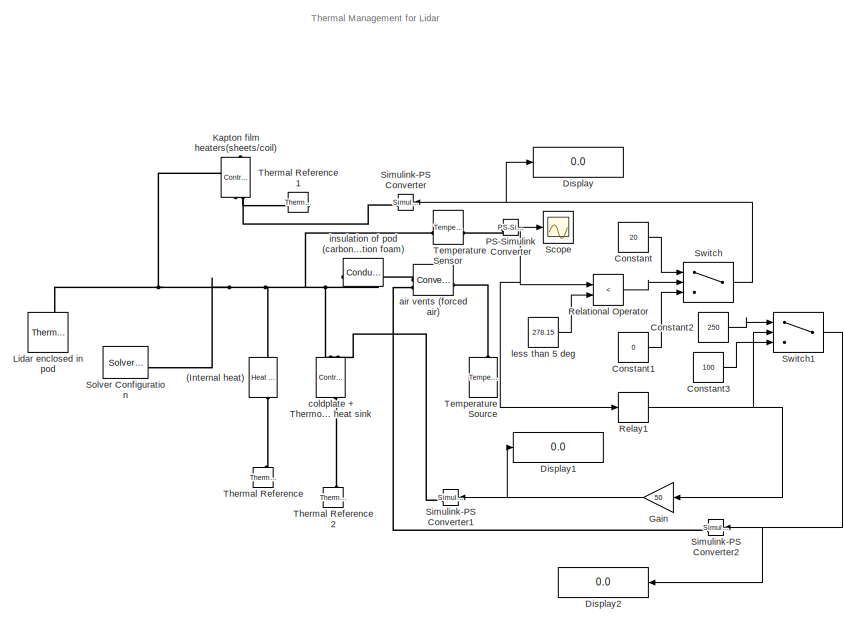
[diagram: root canvas - part 1/2, middle right region]
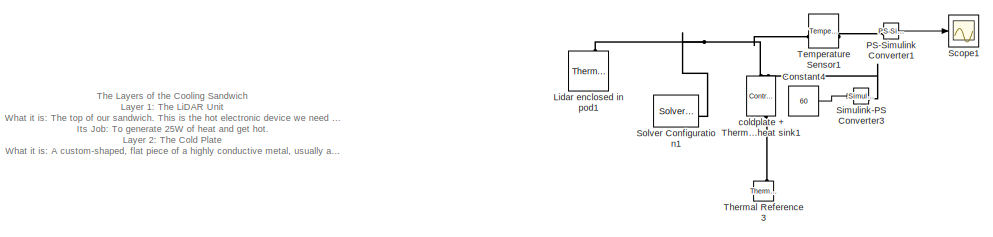
[diagram: root canvas - part 2/2, bottom left region]
MODEL slx_9865f0318a9e
KIND model
CONFIG AbsTol = auto
CONFIG EnableMultiTasking = off
CONFIG FixedStep = auto
CONFIG MaxStep = auto
CONFIG MinStep = auto
CONFIG RelTol = 1e-3
CONFIG SampleTimeConstraint = Unconstrained
CONFIG SolverName = ode45
CONFIG StartTime = 0.0
CONFIG StopTime = 3600
BLOCK [Reference] (Internal heat)  REF=fl_lib/Thermal/Thermal Sources/Heat Flow Rate
Source
  SourceBlock = fl_lib/Thermal/Thermal Sources/Heat Flow Rate\nSource
  SourceType = Heat Flow Rate\nSource
BLOCK [Constant] Constant
  Value = 20
BLOCK [Constant] Constant1
  Value = 0
BLOCK [Constant] Constant2
  Value = 250
BLOCK [Constant] Constant3
  Value = 100
BLOCK [Constant] Constant4
  Commented = on
  Value = 60
BLOCK [Display] Display
  Decimation = 1
BLOCK [Display] Display1
  Decimation = 1
BLOCK [Display] Display2
  Decimation = 1
  NameLocation = top
BLOCK [Gain] Gain
  Gain = 50
BLOCK [Reference] Kapton film heaters(sheets//coil)  REF=fl_lib/Thermal/Thermal Sources/Controlled Heat Flow
Rate Source
  NameLocation = right
  SourceBlock = fl_lib/Thermal/Thermal Sources/Controlled Heat Flow\nRate Source
  SourceType = Controlled Heat Flow\nRate Source
BLOCK [Reference] Lidar enclosed in pod  REF=fl_lib/Thermal/Thermal Elements/Thermal Mass
  SourceBlock = fl_lib/Thermal/Thermal Elements/Thermal Mass
  SourceType = Thermal Mass
BLOCK [Reference] Lidar enclosed in pod1  REF=fl_lib/Thermal/Thermal Elements/Thermal Mass
  Commented = on
  SourceBlock = fl_lib/Thermal/Thermal Elements/Thermal Mass
  SourceType = Thermal Mass
BLOCK [Reference] PS-Simulink Converter  REF=nesl_utility/PS-Simulink
Converter
  SourceBlock = nesl_utility/PS-Simulink\nConverter
  SourceType = PS-Simulink\nConverter
BLOCK [Reference] PS-Simulink Converter1  REF=nesl_utility/PS-Simulink
Converter
  Commented = on
  SourceBlock = nesl_utility/PS-Simulink\nConverter
  SourceType = PS-Simulink\nConverter
BLOCK [RelationalOperator] Relational Operator
  InputSameDT = off
  Operator = <
  OutDataTypeStr = boolean
  RndMeth = Simplest
BLOCK [Relay] Relay1
  OffSwitchValue = 307.15
  OnSwitchValue = 308.15
BLOCK [Scope] Scope
  ActiveDisplayYMaximum = 353.06995549291725
  ActiveDisplayYMinimum = 253.95851423403107
  Floating = off
  GraphicalSettings = {"AxesScalingProperties":{"AlignXAxis":"Center","AlignYAxis":"Center","AutoScaleXAxisLimits":false,"AxesScaling":"Manual","AxesScalingNumUpdates":10,"ExpandOnly":true,"ScaleAxesLimitsAtStop":false,"XAxisDataRange":100,"YAxisDataRange":80},"DisplayProperties":{"ColorOrder":["auto","auto","auto","auto","auto","auto","auto","auto","auto","auto","auto","auto","auto","auto","auto","auto","auto","auto",...<+2043ch>
  MultipleDisplayCache = [{"MaxYLimMag":296.89999999161495,"MaxYLimReal":353.06995549291725,"MinYLimMag":259.4000000754653,"MinYLimReal":253.95851423403107,"PlotAsMagnitudePhase":false,"ShowGrid":true,"ShowLegend":false,"Title":"%<SignalLabel>","YLabel":""}]
  NumInputPorts = 1
  ScopeFrameLocation = window
  WasSavedAsWebScope = on
  WindowPosition = [488.000000,222.000000,560.000000,420.000000,]
BLOCK [Scope] Scope1
  ActiveDisplayYMaximum = 296.4024695054996
  ActiveDisplayYMinimum = 266.52257904492308
  Commented = on
  DataLoggingVariableName = ScopeData1
  Floating = off
  GraphicalSettings = {"AxesScalingProperties":{"AlignXAxis":"Center","AlignYAxis":"Center","AutoScaleXAxisLimits":false,"AxesScaling":"Manual","AxesScalingNumUpdates":10,"ExpandOnly":true,"ScaleAxesLimitsAtStop":false,"XAxisDataRange":100,"YAxisDataRange":80},"DisplayProperties":{"ColorOrder":["auto","auto","auto","auto","auto","auto","auto","auto","auto","auto","auto","auto","auto","auto","auto","auto","auto","auto",...<+2042ch>
  MultipleDisplayCache = [{"MaxYLimMag":296.89999999161495,"MaxYLimReal":296.4024695054996,"MinYLimMag":259.4000000754653,"MinYLimReal":266.52257904492308,"PlotAsMagnitudePhase":false,"ShowGrid":true,"ShowLegend":false,"Title":"%<SignalLabel>","YLabel":""}]
  NumInputPorts = 1
  ScopeFrameLocation = window
  WasSavedAsWebScope = on
  WindowPosition = [414.000000,315.000000,560.000000,420.000000,]
BLOCK [Reference] Simulink-PS Converter  REF=nesl_utility/Simulink-PS
Converter
  NameLocation = top
  SourceBlock = nesl_utility/Simulink-PS\nConverter
  SourceType = Simulink-PS\nConverter
BLOCK [Reference] Simulink-PS Converter1  REF=nesl_utility/Simulink-PS
Converter
  NameLocation = top
  SourceBlock = nesl_utility/Simulink-PS\nConverter
  SourceType = Simulink-PS\nConverter
BLOCK [Reference] Simulink-PS Converter2  REF=nesl_utility/Simulink-PS
Converter
  NameLocation = top
  SourceBlock = nesl_utility/Simulink-PS\nConverter
  SourceType = Simulink-PS\nConverter
BLOCK [Reference] Simulink-PS Converter3  REF=nesl_utility/Simulink-PS
Converter
  Commented = on
  SourceBlock = nesl_utility/Simulink-PS\nConverter
  SourceType = Simulink-PS\nConverter
BLOCK [Reference] Solver Configuration  REF=nesl_utility/Solver
Configuration
  SourceBlock = nesl_utility/Solver\nConfiguration
  SourceType = Solver\nConfiguration
BLOCK [Reference] Solver Configuration1  REF=nesl_utility/Solver
Configuration
  Commented = on
  SourceBlock = nesl_utility/Solver\nConfiguration
  SourceType = Solver\nConfiguration
BLOCK [Switch] Switch
  Criteria = u2 ~= 0
  InputSameDT = off
  SaturateOnIntegerOverflow = off
BLOCK [Switch] Switch1
  Criteria = u2 ~= 0
  InputSameDT = off
  SaturateOnIntegerOverflow = off
BLOCK [Reference] Temperature Sensor  REF=fl_lib/Thermal/Thermal Sensors/Temperature Sensor
  SourceBlock = fl_lib/Thermal/Thermal Sensors/Temperature Sensor
  SourceType = Temperature Sensor
BLOCK [Reference] Temperature Sensor1  REF=fl_lib/Thermal/Thermal Sensors/Temperature Sensor
  Commented = on
  SourceBlock = fl_lib/Thermal/Thermal Sensors/Temperature Sensor
  SourceType = Temperature Sensor
BLOCK [Reference] Temperature Source  REF=fl_lib/Thermal/Thermal Sources/Temperature Source
  NameLocation = right
  SourceBlock = fl_lib/Thermal/Thermal Sources/Temperature Source
  SourceType = Temperature Source
BLOCK [Reference] Thermal Reference  REF=fl_lib/Thermal/Thermal Elements/Thermal Reference
  NameLocation = right
  SourceBlock = fl_lib/Thermal/Thermal Elements/Thermal Reference
  SourceType = Thermal Reference
BLOCK [Reference] Thermal Reference1  REF=fl_lib/Thermal/Thermal Elements/Thermal Reference
  NameLocation = top
  SourceBlock = fl_lib/Thermal/Thermal Elements/Thermal Reference
  SourceType = Thermal Reference
BLOCK [Reference] Thermal Reference2  REF=fl_lib/Thermal/Thermal Elements/Thermal Reference
  NameLocation = right
  SourceBlock = fl_lib/Thermal/Thermal Elements/Thermal Reference
  SourceType = Thermal Reference
BLOCK [Reference] Thermal Reference3  REF=fl_lib/Thermal/Thermal Elements/Thermal Reference
  Commented = on
  NameLocation = right
  SourceBlock = fl_lib/Thermal/Thermal Elements/Thermal Reference
  SourceType = Thermal Reference
BLOCK [Reference] air vents (forced air)  REF=fl_lib/Thermal/Thermal Elements/Convective Heat
Transfer
  SourceBlock = fl_lib/Thermal/Thermal Elements/Convective Heat\nTransfer
  SourceType = Convective Heat\nTransfer
BLOCK [Reference] coldplate + Thermoelectric cooler + heat sink  REF=fl_lib/Thermal/Thermal Sources/Controlled Heat Flow
Rate Source
  SourceBlock = fl_lib/Thermal/Thermal Sources/Controlled Heat Flow\nRate Source
  SourceType = Controlled Heat Flow\nRate Source
BLOCK [Reference] coldplate + Thermoelectric cooler + heat sink1  REF=fl_lib/Thermal/Thermal Sources/Controlled Heat Flow
Rate Source
  Commented = on
  SourceBlock = fl_lib/Thermal/Thermal Sources/Controlled Heat Flow\nRate Source
  SourceType = Controlled Heat Flow\nRate Source
BLOCK [Reference] insulation of pod (carbon fiber + polymer insulation foam)  REF=fl_lib/Thermal/Thermal Elements/Conductive Heat
Transfer
  NameLocation = top
  SourceBlock = fl_lib/Thermal/Thermal Elements/Conductive Heat\nTransfer
  SourceType = Conductive Heat\nTransfer
BLOCK [Constant] less than 5 deg
  Value = 278.15
ANNOTATION (root): The Layers of the Cooling Sandwich Layer 1: The LiDAR Unit What it is: The top of our sandwich. This is the hot electronic device we need to cool. Its Job: To generate 25W of heat and get hot. Layer 2: The Cold Plate What it is: A custom-shaped, flat piece of a highly conductive metal, usually aluminum. The LiDAR is bolted directly onto this plate. Its Job: To be a "heat collector." Because it's a...<+1388ch>
ANNOTATION (root): Thermal Management for Lidar
LINE Constant1:1 -> Switch:3
LINE Constant2:1 -> Switch1:1
LINE Constant3:1 -> Switch1:3
LINE Constant4:1 -> Simulink-PS Converter3:1
LINE Constant:1 -> Switch:1
NET Gain:1 -> Display1:1, Simulink-PS Converter1:1
LINE PS-Simulink Converter1:1 -> Scope1:1
NET PS-Simulink Converter:1 -> Relational Operator:1, Relay1:1, Scope:1
LINE Relational Operator:1 -> Switch:2
NET Relay1:1 -> Gain:1, Switch1:2
NET Switch1:1 -> Display2:1, Simulink-PS Converter2:1
NET Switch:1 -> Display:1, Simulink-PS Converter:1
LINE less than 5 deg:1 -> Relational Operator:2
PNET net1: (Internal heat):LConn1 -- Kapton film heaters(sheets//coil):LConn1 -- Lidar enclosed in pod:LConn1 -- Solver Configuration:RConn1 -- Temperature Sensor:LConn1 -- coldplate + Thermoelectric cooler + heat sink:RConn2 -- insulation of pod (carbon fiber + polymer insulation foam):RConn1
PLINE (Internal heat):RConn1 -- Thermal Reference:LConn1
PLINE Kapton film heaters(sheets//coil):RConn1 -- Simulink-PS Converter:RConn1
PLINE Kapton film heaters(sheets//coil):RConn2 -- Thermal Reference1:LConn1
PNET net2: Lidar enclosed in pod1:LConn1 -- Solver Configuration1:RConn1 -- Temperature Sensor1:LConn1 -- coldplate + Thermoelectric cooler + heat sink1:RConn2
PLINE PS-Simulink Converter1:LConn1 -- Temperature Sensor1:RConn1
PLINE PS-Simulink Converter:LConn1 -- Temperature Sensor:RConn1
PLINE Simulink-PS Converter1:RConn1 -- coldplate + Thermoelectric cooler + heat sink:RConn1
PLINE Simulink-PS Converter2:RConn1 -- air vents (forced air):LConn2
PLINE Simulink-PS Converter3:RConn1 -- coldplate + Thermoelectric cooler + heat sink1:RConn1
PLINE Temperature Source:LConn1 -- air vents (forced air):RConn1
PLINE Thermal Reference2:LConn1 -- coldplate + Thermoelectric cooler + heat sink:LConn1
PLINE Thermal Reference3:LConn1 -- coldplate + Thermoelectric cooler + heat sink1:LConn1
PLINE air vents (forced air):LConn1 -- insulation of pod (carbon fiber + polymer insulation foam):LConn1
note: NET lines group one-source signal fan-out (src -> all destinations, sorted); 1:1 wires keep LINE; PNET lines group multi-terminal physical nets as a canonical sorted terminal list (undirected conserving connections); 2-terminal nets keep the pairwise PLINE form
